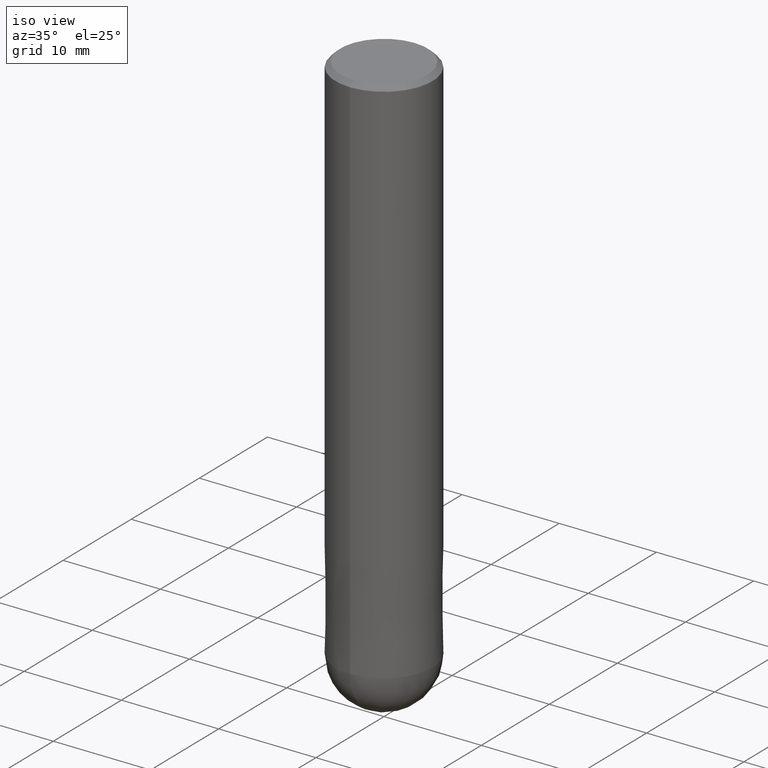
[diagram: clean part render]
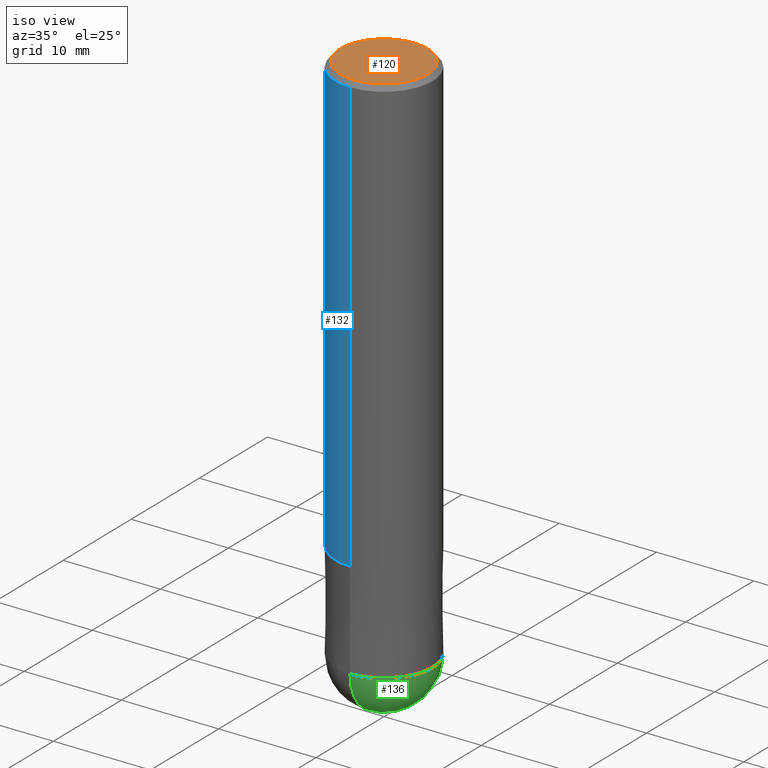
[diagram: same view with three faces highlighted in distinct colors, each labeled with its STEP entity id]
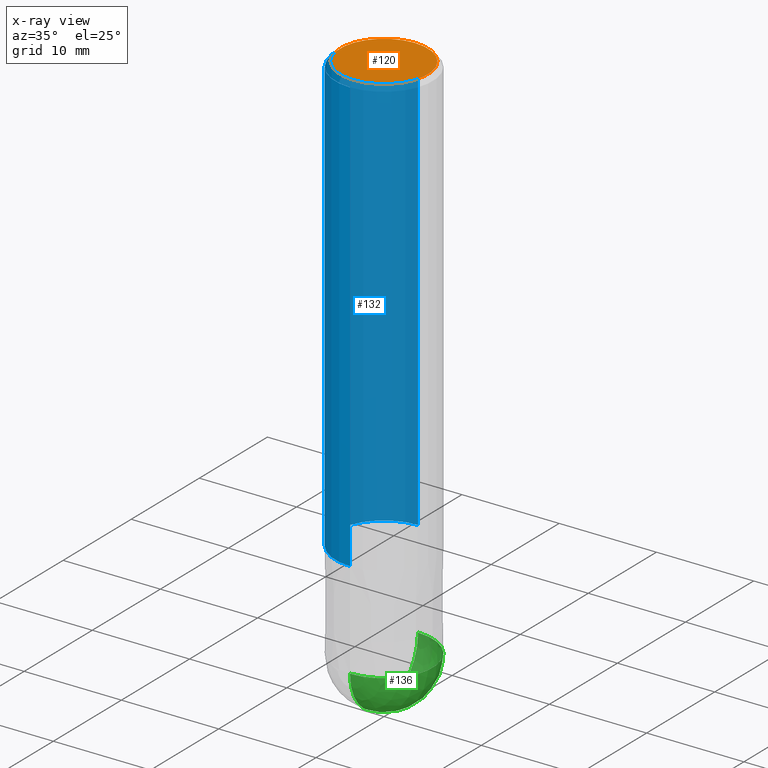
[diagram: x-ray of the same camera — body ghosted, the three highlighted faces saturated]
A machine part, iso view with three faces highlighted in distinct colors.
The next image is the same camera in x-ray (body ghosted, the three faces saturated) — at least one of them is partly hidden behind the body in this view.
Their STEP definitions:

[orange] entity #120 — the highlighted planar face has unit normal (-0, 0, 1).
#70=EDGE_CURVE('',#124,#86,#162,.T.);
#72=EDGE_CURVE('',#86,#124,#164,.T.);
#86=VERTEX_POINT('',#179);
#120=ADVANCED_FACE('',(#217),#218,.T.);
#124=VERTEX_POINT('',#223);
#162=CIRCLE('',#262,4.5);
#164=CIRCLE('',#265,4.5);
#179=CARTESIAN_POINT('',(5.5107285922007E-016,-4.5,0.0));
#217=FACE_OUTER_BOUND('',#330,.T.);
#218=PLANE('',#331);
#223=CARTESIAN_POINT('',(0.0,4.5,0.0));
#262=AXIS2_PLACEMENT_3D('',#364,#365,#366);
#265=AXIS2_PLACEMENT_3D('',#367,#368,#369);
#330=EDGE_LOOP('',(#434,#435));
#331=AXIS2_PLACEMENT_3D('',#436,#437,#438);
#364=CARTESIAN_POINT('',(0.0,0.0,0.0));
#365=DIRECTION('',(0.0,0.0,-1.0));
#366=DIRECTION('',(0.0,1.0,0.0));
#367=CARTESIAN_POINT('',(0.0,0.0,0.0));
#368=DIRECTION('',(0.0,0.0,-1.0));
#369=DIRECTION('',(0.0,1.0,0.0));
#434=ORIENTED_EDGE('',*,*,#70,.F.);
#435=ORIENTED_EDGE('',*,*,#72,.F.);
#436=CARTESIAN_POINT('',(0.0,2.25,0.0));
#437=DIRECTION('',(-0.0,0.0,1.0));
#438=DIRECTION('',(0.0,-1.0,0.0));

[blue] entity #132 — the highlighted cylindrical surface (partial cylindrical patch) has radius 5 mm, axis along (-0, -0, 1).
#68=EDGE_CURVE('',#110,#76,#160,.T.);
#76=VERTEX_POINT('',#168);
#78=EDGE_CURVE('',#92,#88,#170,.T.);
#88=VERTEX_POINT('',#181);
#92=VERTEX_POINT('',#185);
#100=EDGE_CURVE('',#110,#92,#195,.T.);
#110=VERTEX_POINT('',#207);
#130=EDGE_CURVE('',#88,#76,#231,.T.);
#132=ADVANCED_FACE('',(#233),#234,.T.);
#160=CIRCLE('',#259,5.0);
#168=CARTESIAN_POINT('',(0.0,5.0,-45.0));
#170=CIRCLE('',#273,5.0);
#181=CARTESIAN_POINT('',(0.0,5.0,-0.5));
#185=CARTESIAN_POINT('',(6.12303176911189E-016,-5.0,-0.5));
#195=LINE('',#302,#303);
#207=CARTESIAN_POINT('',(6.12303176911189E-016,-5.0,-45.0));
#231=LINE('',#345,#346);
#233=FACE_OUTER_BOUND('',#348,.T.);
#234=CYLINDRICAL_SURFACE('',#349,5.0);
#259=AXIS2_PLACEMENT_3D('',#361,#362,#363);
#273=AXIS2_PLACEMENT_3D('',#373,#374,#375);
#302=CARTESIAN_POINT('',(6.12303176911189E-016,-5.0,-22.75));
#303=VECTOR('',#402,1.0);
#345=CARTESIAN_POINT('',(-6.12303176911189E-016,5.0,-22.75));
#346=VECTOR('',#455,1.0);
#348=EDGE_LOOP('',(#457,#458,#459,#460));
#349=AXIS2_PLACEMENT_3D('',#461,#462,#463);
#361=CARTESIAN_POINT('',(0.0,0.0,-45.0));
#362=DIRECTION('',(0.0,0.0,-1.0));
#363=DIRECTION('',(0.0,1.0,0.0));
#373=CARTESIAN_POINT('',(0.0,0.0,-0.5));
#374=DIRECTION('',(0.0,0.0,-1.0));
#375=DIRECTION('',(0.0,1.0,0.0));
#402=DIRECTION('',(-0.0,-0.0,1.0));
#455=DIRECTION('',(0.0,0.0,-1.0));
#457=ORIENTED_EDGE('',*,*,#130,.T.);
#458=ORIENTED_EDGE('',*,*,#68,.F.);
#459=ORIENTED_EDGE('',*,*,#100,.T.);
#460=ORIENTED_EDGE('',*,*,#78,.T.);
#461=CARTESIAN_POINT('',(0.0,0.0,-22.75));
#462=DIRECTION('',(-0.0,-0.0,1.0));
#463=DIRECTION('',(0.0,1.0,0.0));

[green] entity #136 — the highlighted spherical surface has radius 5 mm.
#90=VERTEX_POINT('',#183);
#114=EDGE_CURVE('',#126,#90,#211,.T.);
#116=EDGE_CURVE('',#90,#126,#213,.T.);
#126=VERTEX_POINT('',#225);
#136=ADVANCED_FACE('',(#238),#239,.T.);
#183=CARTESIAN_POINT('',(6.12303176911188E-016,-5.0,-55.0));
#211=CIRCLE('',#321,5.0);
#213=CIRCLE('',#324,4.99999999999999);
#225=CARTESIAN_POINT('',(0.0,5.0,-55.0));
#238=FACE_OUTER_BOUND('',#353,.T.);
#239=SPHERICAL_SURFACE('',#354,4.99999999999999);
#321=AXIS2_PLACEMENT_3D('',#426,#427,#428);
#324=AXIS2_PLACEMENT_3D('',#429,#430,#431);
#353=EDGE_LOOP('',(#465,#466));
#354=AXIS2_PLACEMENT_3D('',#467,#468,#469);
#426=CARTESIAN_POINT('',(0.0,0.0,-55.0));
#427=DIRECTION('',(0.0,0.0,-1.0));
#428=DIRECTION('',(0.0,1.0,0.0));
#429=CARTESIAN_POINT('',(0.0,0.0,-55.0));
#430=DIRECTION('',(1.0,0.0,1.22460635382238E-016));
#431=DIRECTION('',(-1.22460635382238E-016,0.0,1.0));
#465=ORIENTED_EDGE('',*,*,#116,.T.);
#466=ORIENTED_EDGE('',*,*,#114,.T.);
#467=CARTESIAN_POINT('',(0.0,0.0,-55.0));
#468=DIRECTION('',(0.0,1.0,0.0));
#469=DIRECTION('',(0.0,0.0,-1.0));